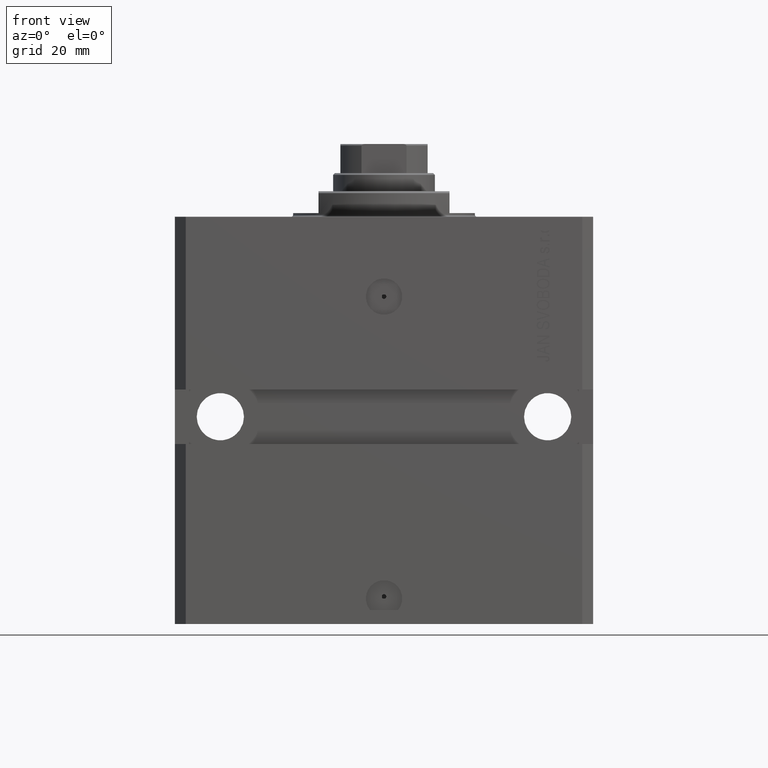
[diagram: clean part render]
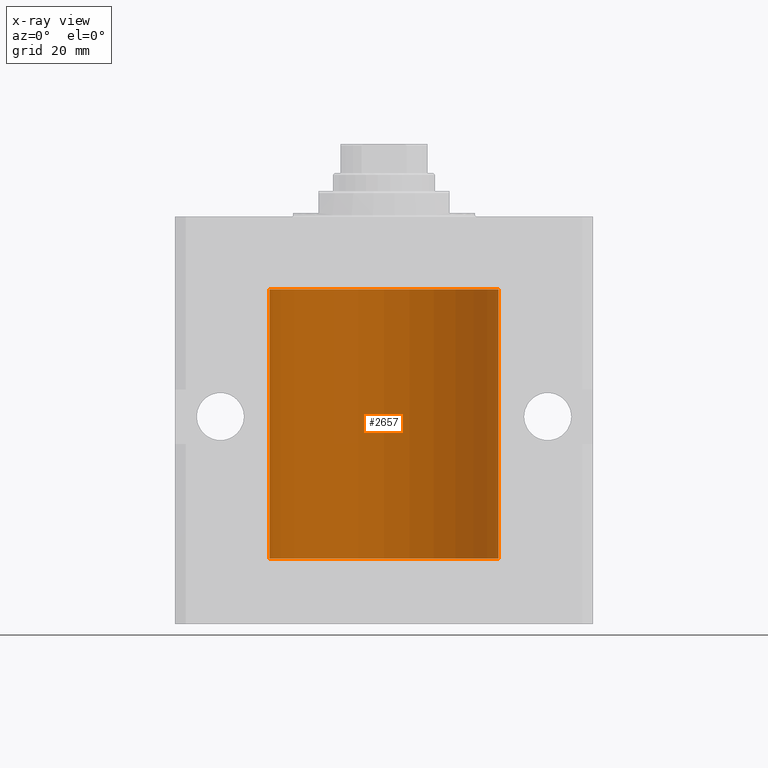
[diagram: x-ray — body ghosted, one internal face saturated and labeled with its STEP entity id]
A machine part, front view, then the same camera in x-ray: the body is ghosted and one INTERNAL B-rep face — a face not visible from any outside direction — is saturated and labeled: STEP entity #2657.
In plain terms, the highlighted cylindrical surface (partial cylindrical patch) has radius 31.5 mm, axis along (0, 0, 1).
Its self-contained STEP definition (entity closure, byte-faithful):
#1044 = CARTESIAN_POINT ( 'NONE',  ( -31.49853548231893541, 0.3253851488062157737, -91.55855470525682449 ) ) ;
#1126 = VECTOR ( 'NONE', #23136, 1000.000000000000000 ) ;
#1449 = ORIENTED_EDGE ( 'NONE', *, *, #24725, .T. ) ;
#1485 = EDGE_CURVE ( 'NONE', #39775, #3661, #28785, .T. ) ;
#1662 = CARTESIAN_POINT ( 'NONE',  ( 0.000000000000000000, 0.000000000000000000, -94.09999999999999432 ) ) ;
#1780 = CARTESIAN_POINT ( 'NONE',  ( -31.49528028230855270, 0.5573323339569603574, -90.67349008819323330 ) ) ;
#2166 = CARTESIAN_POINT ( 'NONE',  ( 31.50000000000000000, 0.000000000000000000, -94.09999999999999432 ) ) ;
#2225 = CARTESIAN_POINT ( 'NONE',  ( -31.50000000000000000, -4.354335586177068504E-17, -90.37500000000001421 ) ) ;
#2657 = ADVANCED_FACE ( 'NONE', ( #46700 ), #31767, .F. ) ;
#2716 = DIRECTION ( 'NONE',  ( -0.000000000000000000, -0.000000000000000000, 1.000000000000000000 ) ) ;
#2756 = ORIENTED_EDGE ( 'NONE', *, *, #45558, .F. ) ;
#3343 = CARTESIAN_POINT ( 'NONE',  ( -31.50000000000006395, 3.480981129463732167E-13, -91.62500000000324007 ) ) ;
#3661 = VERTEX_POINT ( 'NONE', #14644 ) ;
#3861 = CARTESIAN_POINT ( 'NONE',  ( -31.50000000000000000, 6.762885151983182724E-15, -28.37500000000000355 ) ) ;
#3918 = AXIS2_PLACEMENT_3D ( 'NONE', #5127, #42707, #14240 ) ;
#4044 = CARTESIAN_POINT ( 'NONE',  ( 31.50000000000000000, -1.286676774952591455E-15, -29.62500000000000000 ) ) ;
#4354 = CARTESIAN_POINT ( 'NONE',  ( -31.49853548231893541, 0.3253851488062238784, -29.55855470525682094 ) ) ;
#5127 = CARTESIAN_POINT ( 'NONE',  ( 0.000000000000000000, 0.000000000000000000, -20.00000000000000355 ) ) ;
#5276 = DIRECTION ( 'NONE',  ( -0.000000000000000000, -0.000000000000000000, 1.000000000000000000 ) ) ;
#6000 = VERTEX_POINT ( 'NONE', #16912 ) ;
#6727 = CARTESIAN_POINT ( 'NONE',  ( 31.49966575203785268, 0.1636755595825563903, -91.60873030821188934 ) ) ;
#6802 = CARTESIAN_POINT ( 'NONE',  ( 31.50000000000000000, 0.000000000000000000, -94.09999999999999432 ) ) ;
#7283 = CARTESIAN_POINT ( 'NONE',  ( 31.49527883250257432, 0.5574151849338060405, -29.32638608454755058 ) ) ;
#7477 = CARTESIAN_POINT ( 'NONE',  ( 31.50000000000000000, 0.1631291455194407158, -90.37500000000017053 ) ) ;
#8025 = CARTESIAN_POINT ( 'NONE',  ( 31.49379899281745665, 0.6250000000082756024, -28.99999999999905853 ) ) ;
#8200 = CARTESIAN_POINT ( 'NONE',  ( 31.49379899281745665, 0.6250000000082756024, -28.99999999999905853 ) ) ;
#8548 = VERTEX_POINT ( 'NONE', #20660 ) ;
#8798 = CARTESIAN_POINT ( 'NONE',  ( -31.50000000000000000, 3.857637417314162689E-15, -94.09999999999999432 ) ) ;
#8997 = CARTESIAN_POINT ( 'NONE',  ( -31.49851563474690508, 0.3150284575672401277, -90.45401791159616778 ) ) ;
#10040 = VERTEX_POINT ( 'NONE', #16753 ) ;
#10147 = CARTESIAN_POINT ( 'NONE',  ( 31.50000000000000000, -2.492939093807799249E-15, -91.62500000000000000 ) ) ;
#10579 = B_SPLINE_CURVE_WITH_KNOTS ( 'NONE', 3,
 ( #15310, #12980, #45666, #8997, #35865, #1780, #22777, #28148, #16955, #1044, #32121, #16214 ),
 .UNSPECIFIED., .F., .F.,
 ( 4, 2, 2, 2, 2, 4 ),
 ( 3.060010033330318128E-18, 0.0002442604562134843035, 0.0004885209124269656797, 0.0009770418248538988333, 0.001465562737280831987, 0.001954083649707765141 ),
 .UNSPECIFIED. ) ;
#11527 = CARTESIAN_POINT ( 'NONE',  ( 31.49379899281745665, 0.6250000000082756024, -28.99999999999905853 ) ) ;
#11572 = CARTESIAN_POINT ( 'NONE',  ( -31.50000000000006395, 3.480980906124966778E-13, -29.62500000000323297 ) ) ;
#12064 = CARTESIAN_POINT ( 'NONE',  ( -31.50000000000000711, 0.1631661150515227865, -29.62499999999986500 ) ) ;
#12332 = EDGE_CURVE ( 'NONE', #6000, #39878, #40468, .T. ) ;
#12422 = CARTESIAN_POINT ( 'NONE',  ( 31.49379899281762363, 0.6249999999996151967, -28.83697036533062885 ) ) ;
#12758 = CARTESIAN_POINT ( 'NONE',  ( -31.50000000000000000, 3.857637417314162689E-15, -20.00000000000000355 ) ) ;
#12980 = CARTESIAN_POINT ( 'NONE',  ( -31.49999999999999289, 0.08259258789479390073, -90.37500000000005684 ) ) ;
#13111 = DIRECTION ( 'NONE',  ( -0.000000000000000000, -0.000000000000000000, 1.000000000000000000 ) ) ;
#13214 = CARTESIAN_POINT ( 'NONE',  ( 31.49770674525946390, 0.3844410175904657834, -91.49948347834465778 ) ) ;
#13221 = CARTESIAN_POINT ( 'NONE',  ( 31.49379899281745665, 0.6250000000082825968, -90.99999999999904787 ) ) ;
#13456 = CARTESIAN_POINT ( 'NONE',  ( 31.49379899281745665, 0.6250000000082825968, -90.99999999999904787 ) ) ;
#13701 = CARTESIAN_POINT ( 'NONE',  ( 31.50000000000000000, -2.492939093807799249E-15, -91.62500000000000000 ) ) ;
#14240 = DIRECTION ( 'NONE',  ( 1.000000000000000000, 0.000000000000000000, 0.000000000000000000 ) ) ;
#14267 = LINE ( 'NONE', #6802, #37644 ) ;
#14644 = CARTESIAN_POINT ( 'NONE',  ( 31.50000000000006395, 3.442404531757459093E-13, -28.37499999999677058 ) ) ;
#14813 = LINE ( 'NONE', #40951, #48120 ) ;
#15310 = CARTESIAN_POINT ( 'NONE',  ( -31.50000000000000000, -4.354335586177068504E-17, -90.37500000000001421 ) ) ;
#15483 = CARTESIAN_POINT ( 'NONE',  ( 31.49851501686590893, 0.3150934959385772727, -29.54594721883858099 ) ) ;
#15608 = ORIENTED_EDGE ( 'NONE', *, *, #40137, .T. ) ;
#15664 = CARTESIAN_POINT ( 'NONE',  ( 31.49853627283156499, 0.3253078817183363558, -28.44140989403645747 ) ) ;
#16214 = CARTESIAN_POINT ( 'NONE',  ( -31.50000000000006395, 3.480981129463732167E-13, -91.62500000000324007 ) ) ;
#16753 = CARTESIAN_POINT ( 'NONE',  ( -31.50000000000000000, 6.762885151983182724E-15, -28.37500000000000355 ) ) ;
#16912 = CARTESIAN_POINT ( 'NONE',  ( 31.50000000000000000, 0.000000000000000000, -20.00000000000000355 ) ) ;
#16943 = ORIENTED_EDGE ( 'NONE', *, *, #22637, .T. ) ;
#16955 = CARTESIAN_POINT ( 'NONE',  ( -31.49526081842315151, 0.5587119163470747329, -91.32511513093052713 ) ) ;
#17082 = DIRECTION ( 'NONE',  ( 1.000000000000000000, 0.000000000000000000, 0.000000000000000000 ) ) ;
#17189 = CARTESIAN_POINT ( 'NONE',  ( 31.49379899281760942, 0.6250000000003405054, -91.16310352862701905 ) ) ;
#17440 = CARTESIAN_POINT ( 'NONE',  ( 31.50000000000000000, 0.08261130139621999935, -91.62499999999998579 ) ) ;
#17713 = EDGE_CURVE ( 'NONE', #49193, #44070, #28559, .T. ) ;
#18734 = DIRECTION ( 'NONE',  ( -0.000000000000000000, -0.000000000000000000, 1.000000000000000000 ) ) ;
#18877 = DIRECTION ( 'NONE',  ( 0.000000000000000000, 0.000000000000000000, 1.000000000000000000 ) ) ;
#19037 = CARTESIAN_POINT ( 'NONE',  ( -31.49380014137586414, 0.6249421240571522151, -28.83671479190292075 ) ) ;
#19215 = CARTESIAN_POINT ( 'NONE',  ( 31.49966575203784558, 0.1636755595825546972, -29.60873030821186802 ) ) ;
#19411 = CARTESIAN_POINT ( 'NONE',  ( 31.49853627283156499, 0.3253078817183396310, -90.44140989403643971 ) ) ;
#19644 = ORIENTED_EDGE ( 'NONE', *, *, #17713, .F. ) ;
#19912 = CARTESIAN_POINT ( 'NONE',  ( 31.49379899281745665, 0.6250000000082825968, -90.99999999999904787 ) ) ;
#20660 = CARTESIAN_POINT ( 'NONE',  ( -31.50000000000006395, 3.480980906124966778E-13, -29.62500000000323297 ) ) ;
#21129 = VECTOR ( 'NONE', #2716, 1000.000000000000000 ) ;
#21846 = ORIENTED_EDGE ( 'NONE', *, *, #36105, .T. ) ;
#21986 = EDGE_CURVE ( 'NONE', #28864, #22695, #33973, .T. ) ;
#22637 = EDGE_CURVE ( 'NONE', #39945, #39775, #26223, .T. ) ;
#22695 = VERTEX_POINT ( 'NONE', #13221 ) ;
#22771 = CARTESIAN_POINT ( 'NONE',  ( -31.49379784581975983, 0.6250577973157599443, -29.16284184848848327 ) ) ;
#22777 = CARTESIAN_POINT ( 'NONE',  ( -31.49380014137585704, 0.6249421240571513270, -90.83671479190290654 ) ) ;
#23136 = DIRECTION ( 'NONE',  ( -0.000000000000000000, -0.000000000000000000, 1.000000000000000000 ) ) ;
#23401 = CARTESIAN_POINT ( 'NONE',  ( 31.50000000000000000, -1.286676774952591455E-15, -29.62500000000000000 ) ) ;
#23627 = ORIENTED_EDGE ( 'NONE', *, *, #48844, .T. ) ;
#24297 = ORIENTED_EDGE ( 'NONE', *, *, #35641, .T. ) ;
#24725 = EDGE_CURVE ( 'NONE', #34007, #27169, #10579, .T. ) ;
#24906 = CARTESIAN_POINT ( 'NONE',  ( 31.50000000000006395, 3.442404755096224483E-13, -90.37499999999675993 ) ) ;
#25300 = VECTOR ( 'NONE', #35409, 1000.000000000000000 ) ;
#25527 = DIRECTION ( 'NONE',  ( -0.000000000000000000, -0.000000000000000000, 1.000000000000000000 ) ) ;
#26094 = LINE ( 'NONE', #28841, #21129 ) ;
#26223 = B_SPLINE_CURVE_WITH_KNOTS ( 'NONE', 3,
 ( #4044, #42107, #19215, #15483, #30658, #7283, #26917, #8025 ),
 .UNSPECIFIED., .F., .F.,
 ( 4, 2, 2, 4 ),
 ( 1.824539386392990385E-18, 0.0002443157997801608753, 0.0004886315995603199075, 0.0009772631991206452359 ),
 .UNSPECIFIED. ) ;
#26917 = CARTESIAN_POINT ( 'NONE',  ( 31.49379899281760231, 0.6250000000003351763, -29.16310352862698352 ) ) ;
#27104 = CARTESIAN_POINT ( 'NONE',  ( 31.50000000000006395, 3.442404531757459093E-13, -28.37499999999677058 ) ) ;
#27169 = VERTEX_POINT ( 'NONE', #3343 ) ;
#27596 = LINE ( 'NONE', #38809, #1126 ) ;
#28148 = CARTESIAN_POINT ( 'NONE',  ( -31.49379784581975272, 0.6250577973157663836, -91.16284184848848327 ) ) ;
#28559 = CIRCLE ( 'NONE', #48424, 31.50000000000000000 ) ;
#28560 = ORIENTED_EDGE ( 'NONE', *, *, #43358, .F. ) ;
#28785 = B_SPLINE_CURVE_WITH_KNOTS ( 'NONE', 3,
 ( #8200, #12422, #30590, #15664, #46022, #27104 ),
 .UNSPECIFIED., .F., .F.,
 ( 4, 2, 4 ),
 ( 0.0009772631991206452359, 0.001465673424414174614, 0.001954083649707703992 ),
 .UNSPECIFIED. ) ;
#28841 = CARTESIAN_POINT ( 'NONE',  ( 31.50000000000000000, 0.000000000000000000, -94.09999999999999432 ) ) ;
#28864 = VERTEX_POINT ( 'NONE', #10147 ) ;
#30140 = ORIENTED_EDGE ( 'NONE', *, *, #1485, .T. ) ;
#30472 = CARTESIAN_POINT ( 'NONE',  ( -31.49528028230854559, 0.5573323339569596913, -28.67349008819320488 ) ) ;
#30590 = CARTESIAN_POINT ( 'NONE',  ( 31.49526225382467359, 0.5586305680866376910, -28.67476160622149806 ) ) ;
#30658 = CARTESIAN_POINT ( 'NONE',  ( 31.49770674525947101, 0.3844410175904570126, -29.49948347834465068 ) ) ;
#30848 = ORIENTED_EDGE ( 'NONE', *, *, #40382, .F. ) ;
#30967 = CARTESIAN_POINT ( 'NONE',  ( -31.50000000000000000, 0.08259258789479792529, -28.37500000000000355 ) ) ;
#31342 = CARTESIAN_POINT ( 'NONE',  ( 31.49379899281762363, 0.6249999999996236344, -90.83697036533065727 ) ) ;
#31767 = CYLINDRICAL_SURFACE ( 'NONE', #35491, 31.50000000000000000 ) ;
#32121 = CARTESIAN_POINT ( 'NONE',  ( -31.49999999999998579, 0.1631661150515252567, -91.62499999999981526 ) ) ;
#33973 = B_SPLINE_CURVE_WITH_KNOTS ( 'NONE', 3,
 ( #13701, #17440, #6727, #36340, #13214, #40075, #17189, #13456 ),
 .UNSPECIFIED., .F., .F.,
 ( 4, 2, 2, 4 ),
 ( 2.422664849601941982E-18, 0.0002443157997801665674, 0.0004886315995603306411, 0.0009772631991206588969 ),
 .UNSPECIFIED. ) ;
#34007 = VERTEX_POINT ( 'NONE', #2225 ) ;
#35409 = DIRECTION ( 'NONE',  ( -0.000000000000000000, -0.000000000000000000, 1.000000000000000000 ) ) ;
#35491 = AXIS2_PLACEMENT_3D ( 'NONE', #1662, #13111, #17082 ) ;
#35641 = EDGE_CURVE ( 'NONE', #36714, #39945, #14267, .T. ) ;
#35865 = CARTESIAN_POINT ( 'NONE',  ( -31.49770767031179020, 0.3843648832734370968, -90.50046081259654329 ) ) ;
#36105 = EDGE_CURVE ( 'NONE', #22695, #36714, #47666, .T. ) ;
#36340 = CARTESIAN_POINT ( 'NONE',  ( 31.49851501686590893, 0.3150934959385818801, -91.54594721883857744 ) ) ;
#36543 = EDGE_LOOP ( 'NONE', ( #30848, #19644, #15608, #39842, #21846, #24297, #16943, #30140, #23627, #37345, #2756, #41908, #28560, #1449 ) ) ;
#36714 = VERTEX_POINT ( 'NONE', #24906 ) ;
#37345 = ORIENTED_EDGE ( 'NONE', *, *, #12332, .T. ) ;
#37644 = VECTOR ( 'NONE', #18734, 1000.000000000000000 ) ;
#37728 = EDGE_CURVE ( 'NONE', #10040, #8548, #38119, .T. ) ;
#37823 = VECTOR ( 'NONE', #5276, 1000.000000000000000 ) ;
#38119 = B_SPLINE_CURVE_WITH_KNOTS ( 'NONE', 3,
 ( #3861, #30967, #46156, #41679, #45662, #30472, #19037, #22771, #45908, #4354, #12064, #11572 ),
 .UNSPECIFIED., .F., .F.,
 ( 4, 2, 2, 2, 2, 4 ),
 ( 5.322949309211407119E-19, 0.0002442604562134704257, 0.0004885209124269403094, 0.0009770418248538795345, 0.001465562737280818977, 0.001954083649707758635 ),
 .UNSPECIFIED. ) ;
#38333 = CARTESIAN_POINT ( 'NONE',  ( 31.50000000000006395, 3.442404755096224483E-13, -90.37499999999675993 ) ) ;
#38663 = LINE ( 'NONE', #8798, #25300 ) ;
#38809 = CARTESIAN_POINT ( 'NONE',  ( -31.50000000000000000, 3.857637417314162689E-15, -94.09999999999999432 ) ) ;
#39775 = VERTEX_POINT ( 'NONE', #11527 ) ;
#39842 = ORIENTED_EDGE ( 'NONE', *, *, #21986, .T. ) ;
#39852 = LINE ( 'NONE', #43094, #37823 ) ;
#39878 = VERTEX_POINT ( 'NONE', #12758 ) ;
#39945 = VERTEX_POINT ( 'NONE', #23401 ) ;
#40075 = CARTESIAN_POINT ( 'NONE',  ( 31.49527883250257432, 0.5574151849338155884, -91.32638608454757900 ) ) ;
#40137 = EDGE_CURVE ( 'NONE', #49193, #28864, #26094, .T. ) ;
#40382 = EDGE_CURVE ( 'NONE', #44070, #27169, #14813, .T. ) ;
#40468 = CIRCLE ( 'NONE', #3918, 31.50000000000000000 ) ;
#40951 = CARTESIAN_POINT ( 'NONE',  ( -31.50000000000000000, 3.857637417314162689E-15, -94.09999999999999432 ) ) ;
#41426 = CARTESIAN_POINT ( 'NONE',  ( -31.50000000000000000, 3.857637417314162689E-15, -94.09999999999999432 ) ) ;
#41562 = CARTESIAN_POINT ( 'NONE',  ( 31.49526225382467359, 0.5586305680866429091, -90.67476160622146608 ) ) ;
#41679 = CARTESIAN_POINT ( 'NONE',  ( -31.49851563474691929, 0.3150284575672404608, -28.45401791159624949 ) ) ;
#41908 = ORIENTED_EDGE ( 'NONE', *, *, #37728, .T. ) ;
#42005 = CARTESIAN_POINT ( 'NONE',  ( 0.000000000000000000, 0.000000000000000000, -94.09999999999999432 ) ) ;
#42107 = CARTESIAN_POINT ( 'NONE',  ( 31.50000000000000711, 0.08261130139621915280, -29.62499999999999289 ) ) ;
#42707 = DIRECTION ( 'NONE',  ( 0.000000000000000000, 0.000000000000000000, 1.000000000000000000 ) ) ;
#43094 = CARTESIAN_POINT ( 'NONE',  ( 31.50000000000000000, 0.000000000000000000, -94.09999999999999432 ) ) ;
#43358 = EDGE_CURVE ( 'NONE', #34007, #8548, #38663, .T. ) ;
#44070 = VERTEX_POINT ( 'NONE', #41426 ) ;
#45558 = EDGE_CURVE ( 'NONE', #10040, #39878, #27596, .T. ) ;
#45662 = CARTESIAN_POINT ( 'NONE',  ( -31.49770767031179730, 0.3843648832734374854, -28.50046081259655395 ) ) ;
#45666 = CARTESIAN_POINT ( 'NONE',  ( -31.49966591610109390, 0.1636376958180627561, -90.39126189995840832 ) ) ;
#45745 = DIRECTION ( 'NONE',  ( 1.000000000000000000, 0.000000000000000000, 0.000000000000000000 ) ) ;
#45908 = CARTESIAN_POINT ( 'NONE',  ( -31.49526081842315151, 0.5587119163470772865, -29.32511513093050937 ) ) ;
#46022 = CARTESIAN_POINT ( 'NONE',  ( 31.50000000000000000, 0.1631291455194386619, -28.37500000000015277 ) ) ;
#46156 = CARTESIAN_POINT ( 'NONE',  ( -31.49966591610108679, 0.1636376958180631447, -28.39126189995838700 ) ) ;
#46700 = FACE_OUTER_BOUND ( 'NONE', #36543, .T. ) ;
#47666 = B_SPLINE_CURVE_WITH_KNOTS ( 'NONE', 3,
 ( #19912, #31342, #41562, #19411, #7477, #38333 ),
 .UNSPECIFIED., .F., .F.,
 ( 4, 2, 4 ),
 ( 0.0009772631991206588969, 0.001465673424414194563, 0.001954083649707730446 ),
 .UNSPECIFIED. ) ;
#48120 = VECTOR ( 'NONE', #25527, 1000.000000000000000 ) ;
#48424 = AXIS2_PLACEMENT_3D ( 'NONE', #42005, #18877, #45745 ) ;
#48844 = EDGE_CURVE ( 'NONE', #3661, #6000, #39852, .T. ) ;
#49193 = VERTEX_POINT ( 'NONE', #2166 ) ;